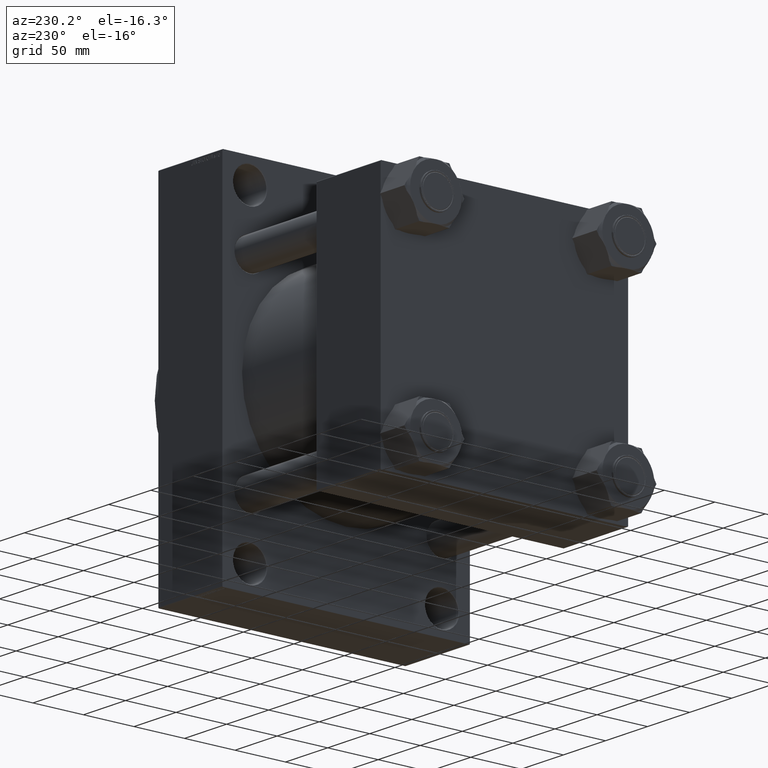
[diagram: clean part render]
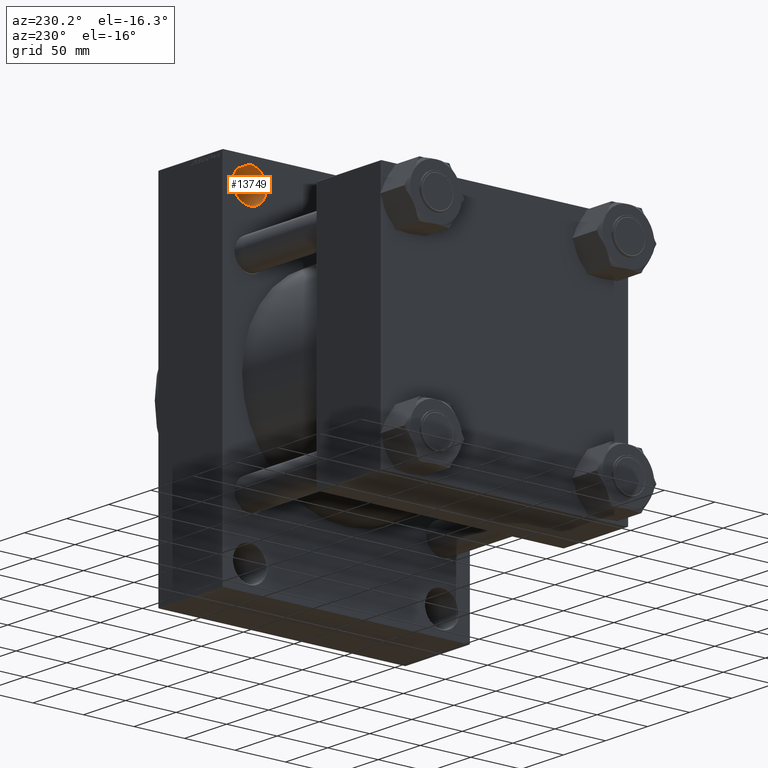
[diagram: same view with one face highlighted and labeled with its STEP entity id]
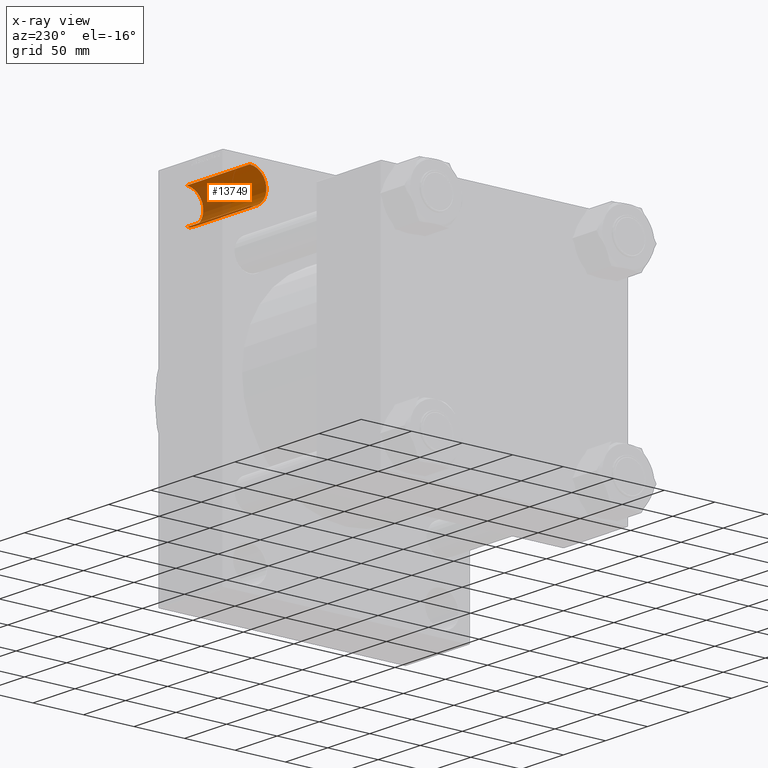
[diagram: x-ray of the same camera — body ghosted, the highlighted face saturated]
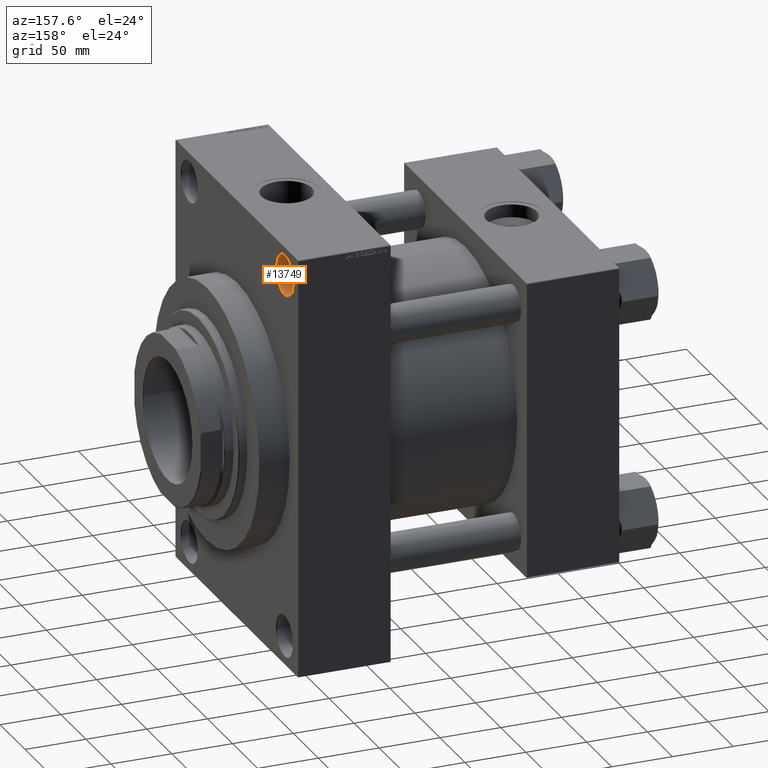
[diagram: same view with one face highlighted and labeled with its STEP entity id]
A machine part, auxiliary view. The second image highlights one B-rep face of the part: STEP entity #13749.
The next image is the same camera in x-ray: the body ghosted, the highlighted face saturated — about 35% of this face is hidden behind the body in this view.
A second angle (auxiliary view) of the same face is appended — the face is thin or edge-on in the first view.
In plain terms, the highlighted cylindrical surface (edge-blend (fillet) strip) has radius 16.5 mm, axis along (1, 0, 0).
Its self-contained STEP definition (entity closure, byte-faithful):
#1346 = AXIS2_PLACEMENT_3D ( 'NONE', #34188, #3970, #22119 ) ;
#3970 = DIRECTION ( 'NONE',  ( 1.000000000000000000, -0.000000000000000000, -0.000000000000000000 ) ) ;
#6307 = VERTEX_POINT ( 'NONE', #23817 ) ;
#6444 = CARTESIAN_POINT ( 'NONE',  ( 141.3309524416877991, 95.00000000000000000, 166.4999999999999716 ) ) ;
#6880 = AXIS2_PLACEMENT_3D ( 'NONE', #41430, #38039, #20170 ) ;
#12313 = DIRECTION ( 'NONE',  ( 1.000000000000000000, -0.000000000000000000, -0.000000000000000000 ) ) ;
#13116 = EDGE_LOOP ( 'NONE', ( #42466, #17355, #31461, #30023 ) ) ;
#13749 = ADVANCED_FACE ( 'NONE', ( #26462 ), #18730, .F. ) ;
#14491 = VECTOR ( 'NONE', #12313, 1000.000000000000000 ) ;
#15039 = EDGE_CURVE ( 'NONE', #6307, #41876, #45430, .T. ) ;
#15157 = DIRECTION ( 'NONE',  ( 0.000000000000000000, 0.000000000000000000, 1.000000000000000000 ) ) ;
#15403 = CARTESIAN_POINT ( 'NONE',  ( 263.4999999999998863, 95.00000000000000000, 133.5000000000000000 ) ) ;
#15868 = CARTESIAN_POINT ( 'NONE',  ( 263.4999999999998863, 95.00000000000000000, 150.0000000000000000 ) ) ;
#17355 = ORIENTED_EDGE ( 'NONE', *, *, #45877, .T. ) ;
#17695 = AXIS2_PLACEMENT_3D ( 'NONE', #15868, #26770, #15157 ) ;
#18730 = CYLINDRICAL_SURFACE ( 'NONE', #1346, 16.49999999999998579 ) ;
#20170 = DIRECTION ( 'NONE',  ( 0.000000000000000000, 0.000000000000000000, 1.000000000000000000 ) ) ;
#20301 = CARTESIAN_POINT ( 'NONE',  ( 141.3309524416877991, 95.00000000000000000, 133.5000000000000000 ) ) ;
#20498 = DIRECTION ( 'NONE',  ( 1.000000000000000000, -0.000000000000000000, -0.000000000000000000 ) ) ;
#21460 = EDGE_CURVE ( 'NONE', #33061, #41876, #38523, .T. ) ;
#22119 = DIRECTION ( 'NONE',  ( 0.000000000000000000, 0.000000000000000000, -1.000000000000000000 ) ) ;
#22685 = EDGE_CURVE ( 'NONE', #6307, #44117, #29291, .T. ) ;
#23817 = CARTESIAN_POINT ( 'NONE',  ( 188.4999999999998579, 95.00000000000000000, 133.5000000000000000 ) ) ;
#24121 = LINE ( 'NONE', #6444, #42165 ) ;
#26462 = FACE_OUTER_BOUND ( 'NONE', #13116, .T. ) ;
#26770 = DIRECTION ( 'NONE',  ( 1.000000000000000000, 0.000000000000000000, 0.000000000000000000 ) ) ;
#29291 = CIRCLE ( 'NONE', #6880, 16.49999999999998579 ) ;
#30023 = ORIENTED_EDGE ( 'NONE', *, *, #15039, .F. ) ;
#31461 = ORIENTED_EDGE ( 'NONE', *, *, #21460, .T. ) ;
#33061 = VERTEX_POINT ( 'NONE', #46049 ) ;
#34188 = CARTESIAN_POINT ( 'NONE',  ( 141.3309524416877991, 95.00000000000000000, 150.0000000000000000 ) ) ;
#38039 = DIRECTION ( 'NONE',  ( -1.000000000000000000, -0.000000000000000000, -0.000000000000000000 ) ) ;
#38523 = CIRCLE ( 'NONE', #17695, 16.49999999999998579 ) ;
#41430 = CARTESIAN_POINT ( 'NONE',  ( 188.4999999999998579, 95.00000000000000000, 150.0000000000000000 ) ) ;
#41876 = VERTEX_POINT ( 'NONE', #15403 ) ;
#42165 = VECTOR ( 'NONE', #20498, 1000.000000000000000 ) ;
#42466 = ORIENTED_EDGE ( 'NONE', *, *, #22685, .T. ) ;
#44117 = VERTEX_POINT ( 'NONE', #46265 ) ;
#45430 = LINE ( 'NONE', #20301, #14491 ) ;
#45877 = EDGE_CURVE ( 'NONE', #44117, #33061, #24121, .T. ) ;
#46049 = CARTESIAN_POINT ( 'NONE',  ( 263.4999999999998863, 95.00000000000000000, 166.4999999999999716 ) ) ;
#46265 = CARTESIAN_POINT ( 'NONE',  ( 188.4999999999998579, 95.00000000000000000, 166.4999999999999716 ) ) ;